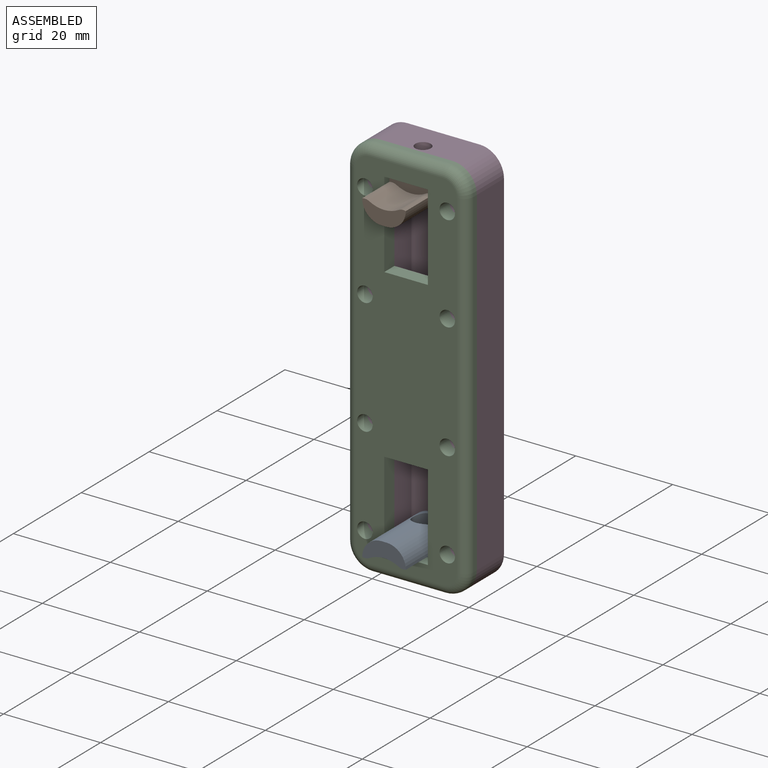
[diagram: assembled view]
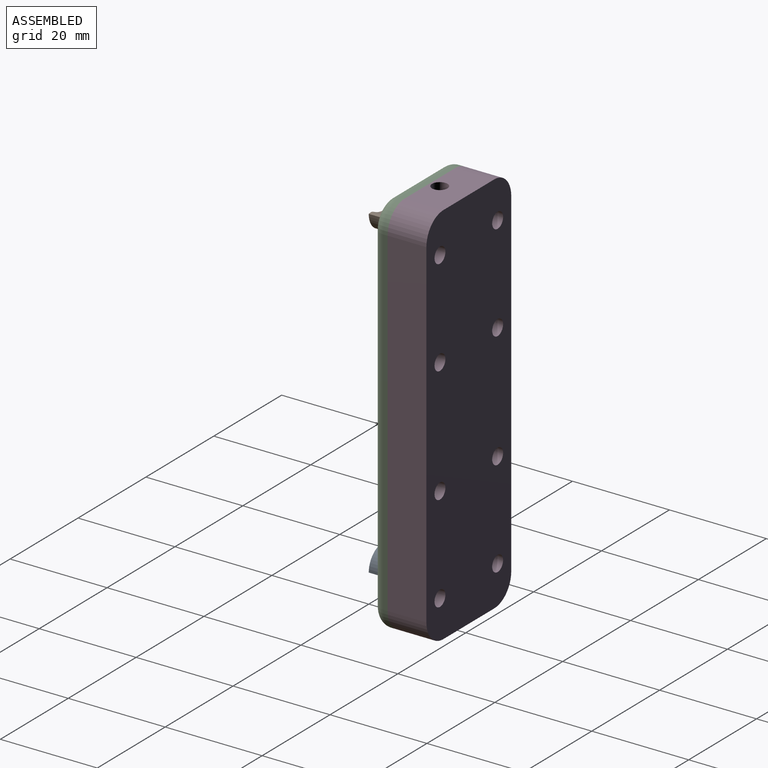
[diagram: assembled view, second angle]
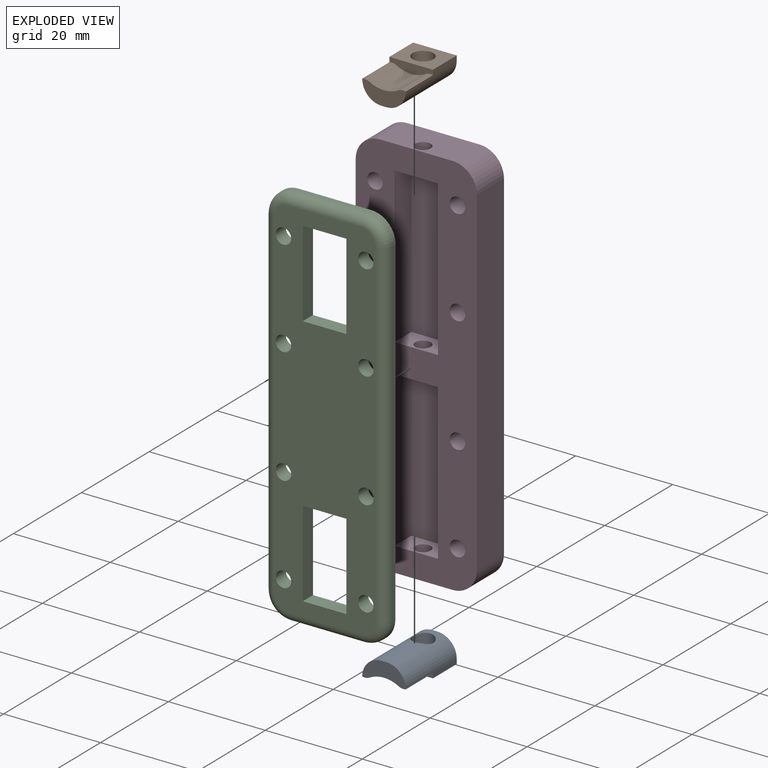
[diagram: exploded view]
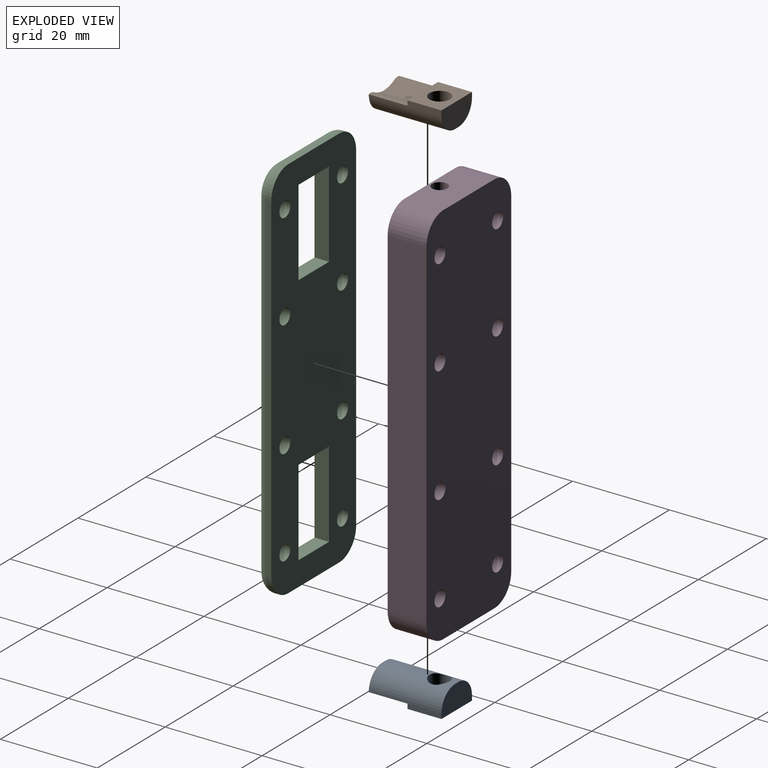
[diagram: exploded view, second angle]
ASSEMBLY  parts=4 mates=3
PART A: 14 faces, bbox 9x15x5 mm
  f0: plane 1.41x1mm, normal (0,0,1), area 1.4mm2, adj f2,f7,f10,f11
  f1: plane 9x1.98mm, normal (0,-1,0), area 13.3mm2, adj f3,f4,f6,f8,f12,f13
  f2: plane 9x5mm, normal (0,1,0), area 38.1mm2, adj f0,f3,f4,f6,f10,f11
  f3: plane 7x1mm, normal (-1,0,0), area 7mm2, adj f1,f2,f6,f10
  f4: plane 7x1mm, normal (1,0,0), area 7mm2, adj f1,f2,f6,f11
  f5: plane 9.41x1mm, normal (0,0,1), area 9.4mm2, adj f7,f9,f10,f11
  f6: plane 9x7mm, normal (0,0,-1), area 48.5mm2, adj f1,f2,f3,f4,f7
  f7: cylinder r=2.15mm len=5mm, axis (0,0,1), area 65.5mm2, adj f0,f5,f6,f10,f11
  f8: cylinder r=6.11mm len=8mm, axis (0,1,0), area 50.2mm2, adj f1,f9,f12,f13
  f9: plane 9x4.07mm, normal (0,-1,0), area 24.8mm2, adj f5,f8,f10,f11,f12,f13
  f10: cylinder r=4mm len=15mm, axis (0,1,0), area 89mm2, adj f0,f2,f3,f5,f7,f9,f12
  f11: cylinder r=4mm len=15mm, axis (0,-1,0), area 89mm2, adj f0,f2,f4,f5,f7,f9,f13
  f12: cylinder r=2mm len=8mm, axis (0,1,0), area 12.4mm2, adj f1,f8,f9,f10
  f13: cylinder r=2mm len=8mm, axis (0,1,0), area 12.4mm2, adj f1,f8,f9,f11
PART B: same geometry as A
PART C: 34 faces, bbox 25.8x3x80.8 mm
  f0: plane 17.78x3mm, normal (1,0,0), area 53.3mm2, adj f1,f16,f20,f21
  f1: plane 9x3mm, normal (0,0,-1), area 27mm2, adj f0,f2,f20,f21
  f2: plane 17.78x3mm, normal (-1,0,0), area 53.3mm2, adj f1,f16,f20,f21
  f3: plane 9x3mm, normal (0,0,1), area 27mm2, adj f4,f17,f20,f21
  f4: plane 17.78x3mm, normal (1,0,0), area 53.3mm2, adj f3,f5,f20,f21
  f5: plane 9x3mm, normal (0,0,-1), area 27mm2, adj f4,f17,f20,f21
  f6: plane 15x1mm, normal (0,0,1), area 15mm2, adj f21,f22,f23,f29
  f7: plane 70x1mm, normal (-1,0,0), area 70mm2, adj f21,f22,f24,f26
  f8: plane 15x1mm, normal (0,0,-1), area 15mm2, adj f21,f24,f25,f30
  f9: cylinder r=1.6mm len=3.2mm, axis (0,1,0), area 30.2mm2, adj f20,f21
  f10: cylinder r=1.6mm len=3.2mm, axis (0,1,0), area 30.2mm2, adj f20,f21
  f11: cylinder r=1.6mm len=3.2mm, axis (0,1,0), area 30.2mm2, adj f20,f21
  f12: cylinder r=1.6mm len=3.2mm, axis (0,1,0), area 30.2mm2, adj f20,f21
  f13: cylinder r=1.6mm len=3.2mm, axis (0,1,0), area 30.2mm2, adj f20,f21
  f14: cylinder r=1.6mm len=3.2mm, axis (0,1,0), area 30.2mm2, adj f20,f21
  f15: cylinder r=1.6mm len=3.2mm, axis (0,1,0), area 30.2mm2, adj f20,f21
  f16: plane 9x3mm, normal (0,0,1), area 27mm2, adj f0,f2,f20,f21
  f17: plane 17.78x3mm, normal (-1,0,0), area 53.3mm2, adj f3,f5,f20,f21
  f18: plane 70x1mm, normal (1,0,0), area 70mm2, adj f21,f23,f25,f33
  f19: cylinder r=1.6mm len=3.2mm, axis (0,1,0), area 30.2mm2, adj f20,f21
  f20: plane 76x21mm, normal (0,-1,0), area 1203.9mm2, adj f0,f1,f2,f3,f4,f5,f9,f10
  f21: plane 80x25mm, normal (0,1,0), area 1594.1mm2, adj f0,f1,f2,f3,f4,f5,f6,f7
  f22: cylinder r=5mm len=5mm, axis (0,-1,0), area 7.9mm2, adj f6,f7,f21,f27
  f23: cylinder r=5mm len=5mm, axis (0,1,0), area 7.9mm2, adj f6,f18,f21,f31
  f24: cylinder r=5mm len=5mm, axis (0,1,0), area 7.9mm2, adj f7,f8,f21,f28
  f25: cylinder r=5mm len=5mm, axis (0,-1,0), area 7.9mm2, adj f8,f18,f21,f32
  f26: cylinder r=2mm len=70mm, axis (0,0,1), area 219.9mm2, adj f7,f20,f27,f28
  f27: torus R=3mm, axis (0,-1,0), area 21.1mm2, adj f20,f22,f26,f29
  f28: torus R=3mm, axis (0,-1,0), area 21.1mm2, adj f20,f24,f26,f30
  f29: cylinder r=2mm len=15mm, axis (1,0,0), area 47.1mm2, adj f6,f20,f27,f31
  f30: cylinder r=2mm len=15mm, axis (-1,0,0), area 47.1mm2, adj f8,f20,f28,f32
  f31: torus R=3mm, axis (0,-1,0), area 21.1mm2, adj f20,f23,f29,f33
  f32: torus R=3mm, axis (0,-1,0), area 21.1mm2, adj f20,f25,f30,f33
  f33: cylinder r=2mm len=70mm, axis (0,0,-1), area 219.9mm2, adj f18,f20,f31,f32
PART D: 31 faces, bbox 25x8x80 mm
  f0: plane 80x25mm, normal (0,-1,0), area 1338.2mm2, adj f2,f3,f4,f5,f7,f8,f9,f10
  f1: plane 80x25mm, normal (0,1,0), area 1914.2mm2, adj f2,f3,f4,f5,f19,f20,f21,f22
  f2: plane 15x8mm, normal (0,0,1), area 112mm2, adj f0,f1,f17,f27,f30
  f3: plane 70x8mm, normal (-1,0,0), area 560mm2, adj f0,f1,f27,f28
  f4: plane 15x8mm, normal (0,0,-1), area 112mm2, adj f0,f1,f18,f28,f29
  f5: plane 70x8mm, normal (1,0,0), area 560mm2, adj f0,f1,f29,f30
  f6: plane 32x9mm, normal (0,-1,0), area 288mm2, adj f7,f8,f9,f10
  f7: plane 9x5mm, normal (0,0,-1), area 37mm2, adj f0,f6,f8,f10,f16
  f8: plane 32x5mm, normal (1,0,0), area 160mm2, adj f0,f6,f7,f9
  f9: plane 9x5mm, normal (0,0,1), area 37mm2, adj f0,f6,f8,f10,f18
  f10: plane 32x5mm, normal (-1,0,0), area 160mm2, adj f0,f6,f7,f9
  f11: plane 32x9mm, normal (0,-1,0), area 288mm2, adj f12,f13,f14,f15
  f12: plane 32x5mm, normal (1,0,0), area 160mm2, adj f0,f11,f13,f14
  f13: plane 9x5mm, normal (0,0,-1), area 37mm2, adj f0,f11,f12,f15,f17
  f14: plane 9x5mm, normal (0,0,1), area 37mm2, adj f0,f11,f12,f15,f16
  f15: plane 32x5mm, normal (-1,0,0), area 160mm2, adj f0,f11,f13,f14
  f16: cylinder r=1.6mm len=6mm, axis (0,0,1), area 60.3mm2, adj f7,f14
  f17: cylinder r=1.6mm len=5mm, axis (0,0,1), area 50.3mm2, adj f2,f13
  f18: cylinder r=1.6mm len=5mm, axis (0,0,1), area 50.3mm2, adj f4,f9
  f19: cylinder r=1.6mm len=8mm, axis (0,-1,0), area 80.4mm2, adj f0,f1
  f20: cylinder r=1.6mm len=8mm, axis (0,-1,0), area 80.4mm2, adj f0,f1
  f21: cylinder r=1.6mm len=8mm, axis (0,-1,0), area 80.4mm2, adj f0,f1
  f22: cylinder r=1.6mm len=8mm, axis (0,-1,0), area 80.4mm2, adj f0,f1
  f23: cylinder r=1.6mm len=8mm, axis (0,-1,0), area 80.4mm2, adj f0,f1
  f24: cylinder r=1.6mm len=8mm, axis (0,-1,0), area 80.4mm2, adj f0,f1
  f25: cylinder r=1.6mm len=8mm, axis (0,-1,0), area 80.4mm2, adj f0,f1
  f26: cylinder r=1.6mm len=8mm, axis (0,-1,0), area 80.4mm2, adj f0,f1
  f27: cylinder r=5mm len=8mm, axis (0,-1,0), area 62.8mm2, adj f0,f1,f2,f3
  f28: cylinder r=5mm len=8mm, axis (0,1,0), area 62.8mm2, adj f0,f1,f3,f4
  f29: cylinder r=5mm len=8mm, axis (0,-1,0), area 62.8mm2, adj f0,f1,f4,f5
  f30: cylinder r=5mm len=8mm, axis (0,1,0), area 62.8mm2, adj f0,f1,f2,f5
PLACE A t=(-32.04,18.83,-39.07)mm
PLACE B rot(axis=(0,1,0),180deg) t=(48.79,18.83,29.82)mm
PLACE C t=(8.37,20.51,-4.65)mm
PLACE D t=(8.37,20.51,-4.65)mm
MATE fastened C.f11 <-> D.f19  axis (0,1,0) through (-0.13,12.51,27.35)mm
MATE slider A.f7 <-> D.f16  axis (0,0,1) through (8.37,14.51,-36.57)mm
MATE slider B.f7 <-> D.f16  axis (0,0,-1) through (8.37,14.51,29.82)mm
